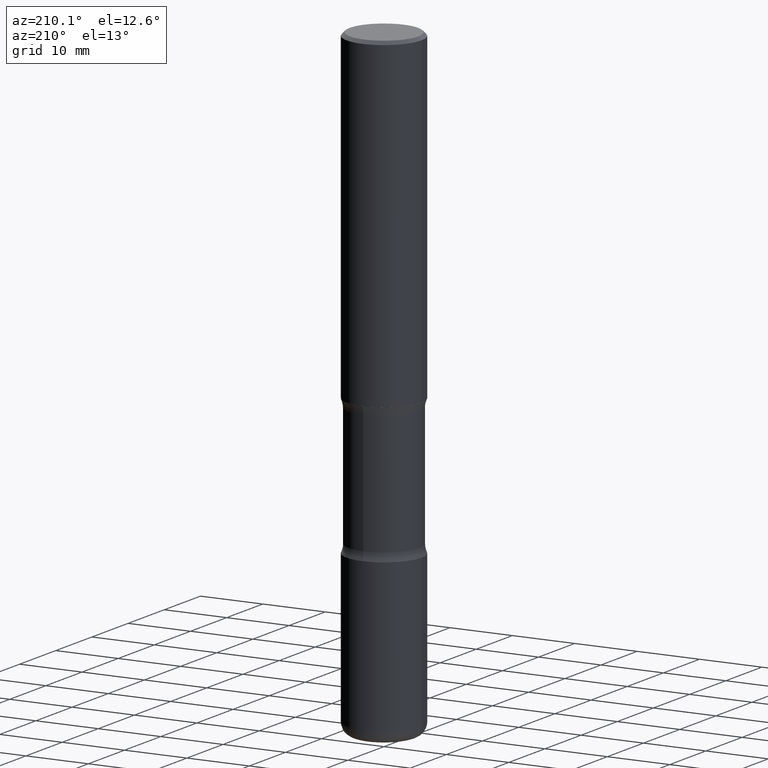
[diagram: clean part render]
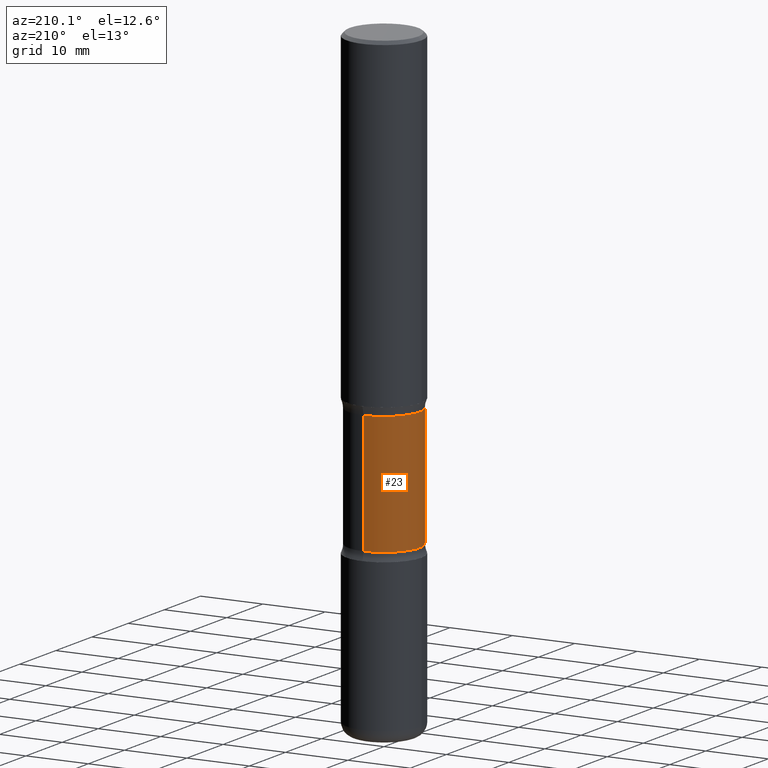
[diagram: same view with one face highlighted and labeled with its STEP entity id]
A machine part, auxiliary view. The second image highlights one B-rep face of the part: STEP entity #23.
In plain terms, the highlighted cylindrical surface (partial cylindrical patch) has radius 5.6998 mm, axis along (0, -0, -1).
Its self-contained STEP definition (entity closure, byte-faithful):
#1 = CARTESIAN_POINT ( 'NONE',  ( 5.070539682259229331E-29, -7.426630284172150130E-15, -2.100216601173595432 ) ) ;
#8 = AXIS2_PLACEMENT_3D ( 'NONE', #29, #195, #370 ) ;
#23 = ADVANCED_FACE ( 'NONE', ( #39 ), #87, .T. ) ;
#29 = CARTESIAN_POINT ( 'NONE',  ( 6.990709676060807691E-29, -9.993088279580958225E-15, -2.860383398826405354 ) ) ;
#39 = FACE_OUTER_BOUND ( 'NONE', #500, .T. ) ;
#43 = CIRCLE ( 'NONE', #312, 0.2243999999999999606 ) ;
#54 = EDGE_CURVE ( 'NONE', #200, #549, #429, .T. ) ;
#87 = CYLINDRICAL_SURFACE ( 'NONE', #527, 0.2243999999999999329 ) ;
#93 = DIRECTION ( 'NONE',  ( 2.525985086076564115E-29, -3.376177443336566513E-15, -1.000000000000000000 ) ) ;
#109 = ORIENTED_EDGE ( 'NONE', *, *, #204, .F. ) ;
#158 = CARTESIAN_POINT ( 'NONE',  ( 1.566976824872867821E-15, 0.2243999999999899686, -2.860383398826405799 ) ) ;
#169 = CARTESIAN_POINT ( 'NONE',  ( 1.566976824872894642E-15, 0.2243999999999863049, -3.937000000000000721 ) ) ;
#172 = DIRECTION ( 'NONE',  ( 6.982962677686265922E-15, 1.000000000000000000, -2.434802133390609815E-15 ) ) ;
#195 = DIRECTION ( 'NONE',  ( 2.525985086076564115E-29, -3.376177443336566513E-15, -1.000000000000000000 ) ) ;
#200 = VERTEX_POINT ( 'NONE', #406 ) ;
#203 = ORIENTED_EDGE ( 'NONE', *, *, #54, .T. ) ;
#204 = EDGE_CURVE ( 'NONE', #237, #549, #242, .T. ) ;
#214 = CARTESIAN_POINT ( 'NONE',  ( -1.539495750699834052E-15, -0.2244000000000135608, -3.936999999999999389 ) ) ;
#237 = VERTEX_POINT ( 'NONE', #428 ) ;
#242 = CIRCLE ( 'NONE', #8, 0.2243999999999999606 ) ;
#254 = LINE ( 'NONE', #214, #346 ) ;
#262 = DIRECTION ( 'NONE',  ( 2.525985086076564115E-29, -3.376177443336566513E-15, -1.000000000000000000 ) ) ;
#297 = EDGE_CURVE ( 'NONE', #493, #200, #43, .T. ) ;
#309 = DIRECTION ( 'NONE',  ( 6.982962677686265922E-15, 1.000000000000000000, -3.652203200085913934E-15 ) ) ;
#312 = AXIS2_PLACEMENT_3D ( 'NONE', #1, #93, #309 ) ;
#338 = DIRECTION ( 'NONE',  ( 2.525985086076564115E-29, -3.376177443336566513E-15, -1.000000000000000000 ) ) ;
#346 = VECTOR ( 'NONE', #383, 39.37007874015748143 ) ;
#355 = EDGE_CURVE ( 'NONE', #493, #237, #254, .T. ) ;
#358 = CARTESIAN_POINT ( 'NONE',  ( -1.579972688886734072E-15, -0.2244000000000073713, -2.100216601173594544 ) ) ;
#366 = ORIENTED_EDGE ( 'NONE', *, *, #297, .T. ) ;
#370 = DIRECTION ( 'NONE',  ( 6.982962677686265922E-15, 1.000000000000000000, -2.434802133390609421E-15 ) ) ;
#383 = DIRECTION ( 'NONE',  ( 2.525985086076564115E-29, -3.376177443336566513E-15, -1.000000000000000000 ) ) ;
#406 = CARTESIAN_POINT ( 'NONE',  ( 1.566976824872848494E-15, 0.2243999999999925499, -2.100216601173596320 ) ) ;
#428 = CARTESIAN_POINT ( 'NONE',  ( -1.579972688886713168E-15, -0.2244000000000099804, -2.860383398826404466 ) ) ;
#429 = LINE ( 'NONE', #169, #444 ) ;
#444 = VECTOR ( 'NONE', #262, 39.37007874015748143 ) ;
#463 = CARTESIAN_POINT ( 'NONE',  ( 9.710227154047748282E-29, -1.362793696358492956E-14, -3.937000000000000277 ) ) ;
#483 = ORIENTED_EDGE ( 'NONE', *, *, #355, .F. ) ;
#493 = VERTEX_POINT ( 'NONE', #358 ) ;
#500 = EDGE_LOOP ( 'NONE', ( #483, #366, #203, #109 ) ) ;
#527 = AXIS2_PLACEMENT_3D ( 'NONE', #463, #338, #172 ) ;
#549 = VERTEX_POINT ( 'NONE', #158 ) ;